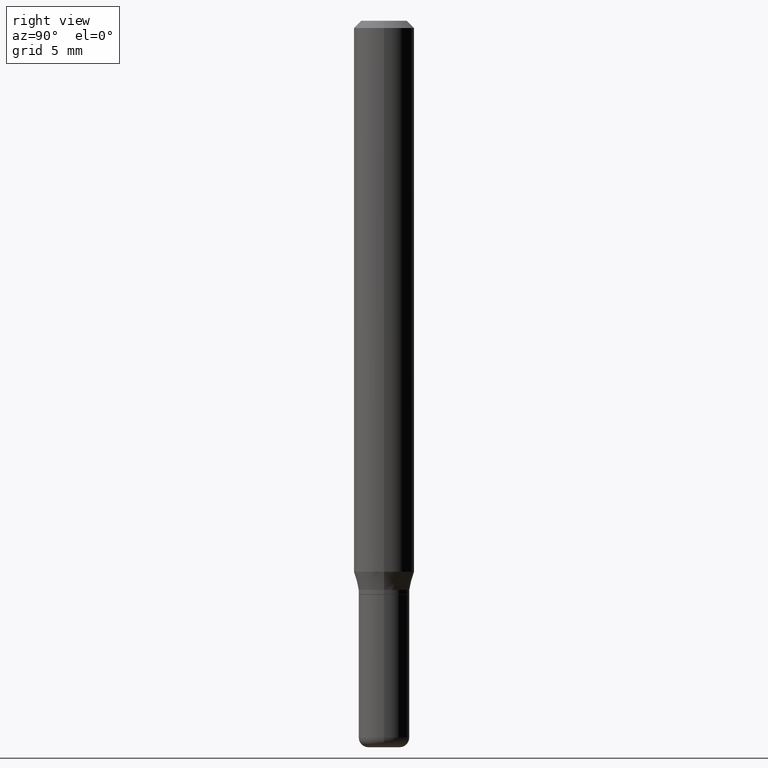
[diagram: clean part render]
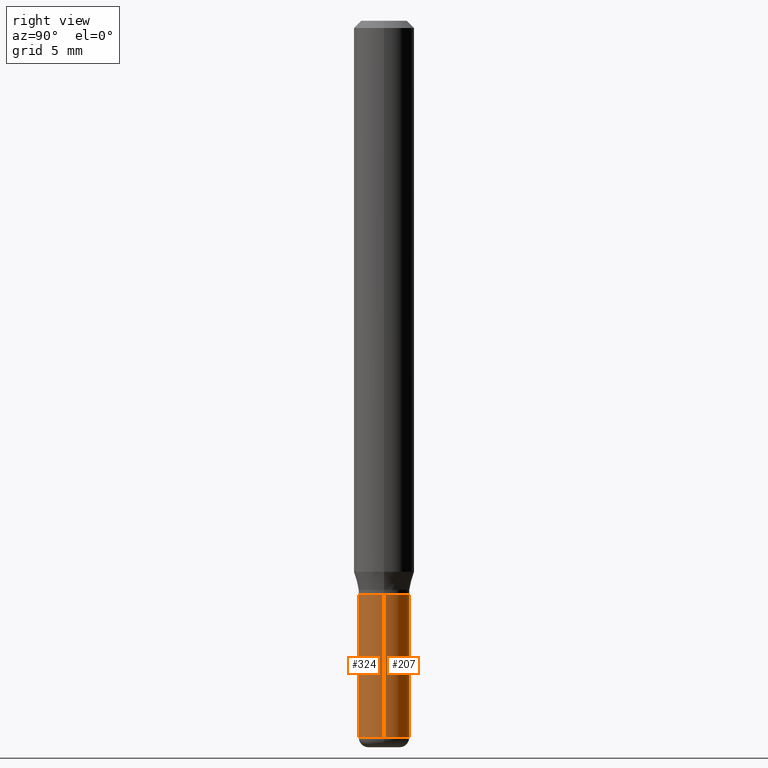
[diagram: same view with one multi-face feature highlighted, each face labeled with its STEP entity id]
A machine part, right view. The highlighted faces form ONE feature: a constant-radius fillet chain: 2 tangent blend faces with common blend radius 1.3335 mm. The faces share edges in the B-rep.
Their STEP definitions:
[1] entity #207 (Cylinder):
#12 = FACE_OUTER_BOUND ( 'NONE', #219, .T. ) ;
#18 = CARTESIAN_POINT ( 'NONE',  ( 0.05250000000000002581, -5.533997922066384039E-15, -1.479999999999999982 ) ) ;
#29 = VERTEX_POINT ( 'NONE', #205 ) ;
#46 = ORIENTED_EDGE ( 'NONE', *, *, #58, .T. ) ;
#51 = ORIENTED_EDGE ( 'NONE', *, *, #458, .F. ) ;
#58 = EDGE_CURVE ( 'NONE', #230, #288, #509, .T. ) ;
#75 = DIRECTION ( 'NONE',  ( -2.445468806185136597E-29, 3.491481338843145583E-15, 1.000000000000000000 ) ) ;
#76 = AXIS2_PLACEMENT_3D ( 'NONE', #356, #75, #441 ) ;
#86 = CARTESIAN_POINT ( 'NONE',  ( -0.05249999999999999806, -4.279363947734439070E-15, -1.185000000000000053 ) ) ;
#95 = DIRECTION ( 'NONE',  ( -2.445468806185136877E-29, 3.491481338843145188E-15, 1.000000000000000000 ) ) ;
#113 = ORIENTED_EDGE ( 'NONE', *, *, #367, .F. ) ;
#118 = LINE ( 'NONE', #358, #497 ) ;
#136 = LINE ( 'NONE', #190, #275 ) ;
#172 = CYLINDRICAL_SURFACE ( 'NONE', #330, 0.05250000000000001193 ) ;
#190 = CARTESIAN_POINT ( 'NONE',  ( -0.05250000000000001193, 3.730349362740526824E-16, -2.582440922383826362E-30 ) ) ;
#196 = CIRCLE ( 'NONE', #76, 0.05249999999999999806 ) ;
#205 = CARTESIAN_POINT ( 'NONE',  ( 0.05249999999999999806, -4.504010927107656701E-15, -1.185000000000000053 ) ) ;
#207 = ADVANCED_FACE ( 'NONE', ( #12 ), #172, .T. ) ;
#213 = CARTESIAN_POINT ( 'NONE',  ( -0.05250000000000001887, -4.279363947734439070E-15, -1.479999999999999982 ) ) ;
#216 = VERTEX_POINT ( 'NONE', #86 ) ;
#219 = EDGE_LOOP ( 'NONE', ( #46, #258, #51, #113 ) ) ;
#230 = VERTEX_POINT ( 'NONE', #18 ) ;
#247 = CARTESIAN_POINT ( 'NONE',  ( 0.000000000000000000, 0.000000000000000000, 0.000000000000000000 ) ) ;
#258 = ORIENTED_EDGE ( 'NONE', *, *, #301, .T. ) ;
#275 = VECTOR ( 'NONE', #95, 39.37007874015748143 ) ;
#281 = AXIS2_PLACEMENT_3D ( 'NONE', #442, #364, #404 ) ;
#284 = DIRECTION ( 'NONE',  ( 1.000000000000000000, -6.982962677686265922E-15, 4.876176775795936353E-29 ) ) ;
#288 = VERTEX_POINT ( 'NONE', #213 ) ;
#301 = EDGE_CURVE ( 'NONE', #288, #216, #136, .T. ) ;
#330 = AXIS2_PLACEMENT_3D ( 'NONE', #247, #365, #284 ) ;
#356 = CARTESIAN_POINT ( 'NONE',  ( 2.897880535329386822E-29, -4.137405386529127541E-15, -1.185000000000000053 ) ) ;
#358 = CARTESIAN_POINT ( 'NONE',  ( 0.05250000000000001193, -3.666055405785290615E-16, 2.559992807292867062E-30 ) ) ;
#364 = DIRECTION ( 'NONE',  ( -2.445468806185136597E-29, 3.491481338843145583E-15, 1.000000000000000000 ) ) ;
#365 = DIRECTION ( 'NONE',  ( -2.445468806185136597E-29, 3.491481338843145583E-15, 1.000000000000000000 ) ) ;
#367 = EDGE_CURVE ( 'NONE', #230, #29, #118, .T. ) ;
#398 = DIRECTION ( 'NONE',  ( -2.445468806185136877E-29, 3.491481338843145188E-15, 1.000000000000000000 ) ) ;
#404 = DIRECTION ( 'NONE',  ( 1.000000000000000000, -6.982962677686264344E-15, 0.000000000000000000 ) ) ;
#441 = DIRECTION ( 'NONE',  ( 1.000000000000000000, -6.982962677686258822E-15, 0.000000000000000000 ) ) ;
#442 = CARTESIAN_POINT ( 'NONE',  ( 3.619293833154002365E-29, -5.167392381487854879E-15, -1.479999999999999982 ) ) ;
#458 = EDGE_CURVE ( 'NONE', #29, #216, #196, .T. ) ;
#497 = VECTOR ( 'NONE', #398, 39.37007874015748143 ) ;
#509 = CIRCLE ( 'NONE', #281, 0.05250000000000002581 ) ;
[2] entity #324 (Cylinder):
#18 = CARTESIAN_POINT ( 'NONE',  ( 0.05250000000000002581, -5.533997922066384039E-15, -1.479999999999999982 ) ) ;
#19 = EDGE_LOOP ( 'NONE', ( #191, #163, #57, #60 ) ) ;
#29 = VERTEX_POINT ( 'NONE', #205 ) ;
#57 = ORIENTED_EDGE ( 'NONE', *, *, #367, .T. ) ;
#59 = CARTESIAN_POINT ( 'NONE',  ( 0.000000000000000000, 0.000000000000000000, 0.000000000000000000 ) ) ;
#60 = ORIENTED_EDGE ( 'NONE', *, *, #486, .F. ) ;
#66 = AXIS2_PLACEMENT_3D ( 'NONE', #59, #299, #465 ) ;
#79 = DIRECTION ( 'NONE',  ( 1.000000000000000000, -6.982962677686258822E-15, 0.000000000000000000 ) ) ;
#86 = CARTESIAN_POINT ( 'NONE',  ( -0.05249999999999999806, -4.279363947734439070E-15, -1.185000000000000053 ) ) ;
#95 = DIRECTION ( 'NONE',  ( -2.445468806185136877E-29, 3.491481338843145188E-15, 1.000000000000000000 ) ) ;
#108 = CYLINDRICAL_SURFACE ( 'NONE', #66, 0.05250000000000001193 ) ;
#118 = LINE ( 'NONE', #358, #497 ) ;
#128 = AXIS2_PLACEMENT_3D ( 'NONE', #517, #156, #474 ) ;
#136 = LINE ( 'NONE', #190, #275 ) ;
#154 = DIRECTION ( 'NONE',  ( -2.445468806185136597E-29, 3.491481338843145583E-15, 1.000000000000000000 ) ) ;
#156 = DIRECTION ( 'NONE',  ( -2.445468806185136597E-29, 3.491481338843145583E-15, 1.000000000000000000 ) ) ;
#163 = ORIENTED_EDGE ( 'NONE', *, *, #409, .T. ) ;
#190 = CARTESIAN_POINT ( 'NONE',  ( -0.05250000000000001193, 3.730349362740526824E-16, -2.582440922383826362E-30 ) ) ;
#191 = ORIENTED_EDGE ( 'NONE', *, *, #301, .F. ) ;
#205 = CARTESIAN_POINT ( 'NONE',  ( 0.05249999999999999806, -4.504010927107656701E-15, -1.185000000000000053 ) ) ;
#213 = CARTESIAN_POINT ( 'NONE',  ( -0.05250000000000001887, -4.279363947734439070E-15, -1.479999999999999982 ) ) ;
#216 = VERTEX_POINT ( 'NONE', #86 ) ;
#230 = VERTEX_POINT ( 'NONE', #18 ) ;
#275 = VECTOR ( 'NONE', #95, 39.37007874015748143 ) ;
#288 = VERTEX_POINT ( 'NONE', #213 ) ;
#299 = DIRECTION ( 'NONE',  ( -2.445468806185136597E-29, 3.491481338843145583E-15, 1.000000000000000000 ) ) ;
#301 = EDGE_CURVE ( 'NONE', #288, #216, #136, .T. ) ;
#324 = ADVANCED_FACE ( 'NONE', ( #423 ), #108, .T. ) ;
#340 = AXIS2_PLACEMENT_3D ( 'NONE', #394, #154, #79 ) ;
#358 = CARTESIAN_POINT ( 'NONE',  ( 0.05250000000000001193, -3.666055405785290615E-16, 2.559992807292867062E-30 ) ) ;
#367 = EDGE_CURVE ( 'NONE', #230, #29, #118, .T. ) ;
#394 = CARTESIAN_POINT ( 'NONE',  ( 2.897880535329386822E-29, -4.137405386529127541E-15, -1.185000000000000053 ) ) ;
#398 = DIRECTION ( 'NONE',  ( -2.445468806185136877E-29, 3.491481338843145188E-15, 1.000000000000000000 ) ) ;
#409 = EDGE_CURVE ( 'NONE', #288, #230, #428, .T. ) ;
#423 = FACE_OUTER_BOUND ( 'NONE', #19, .T. ) ;
#428 = CIRCLE ( 'NONE', #128, 0.05250000000000002581 ) ;
#465 = DIRECTION ( 'NONE',  ( 1.000000000000000000, -6.982962677686265922E-15, 4.876176775795936353E-29 ) ) ;
#474 = DIRECTION ( 'NONE',  ( 1.000000000000000000, -6.982962677686264344E-15, 0.000000000000000000 ) ) ;
#486 = EDGE_CURVE ( 'NONE', #216, #29, #489, .T. ) ;
#489 = CIRCLE ( 'NONE', #340, 0.05249999999999999806 ) ;
#497 = VECTOR ( 'NONE', #398, 39.37007874015748143 ) ;
#517 = CARTESIAN_POINT ( 'NONE',  ( 3.619293833154002365E-29, -5.167392381487854879E-15, -1.479999999999999982 ) ) ;